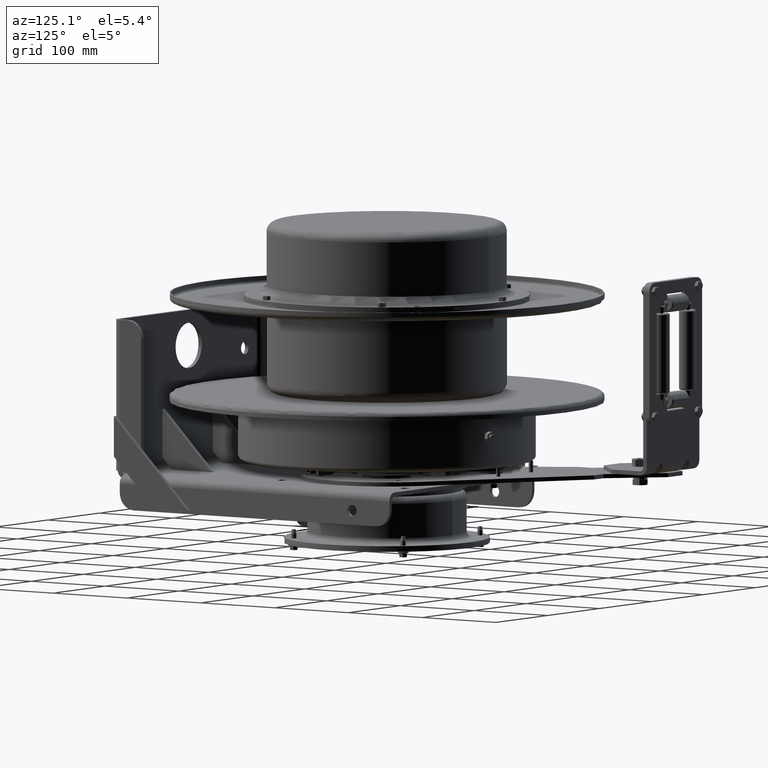
[diagram: clean part render]
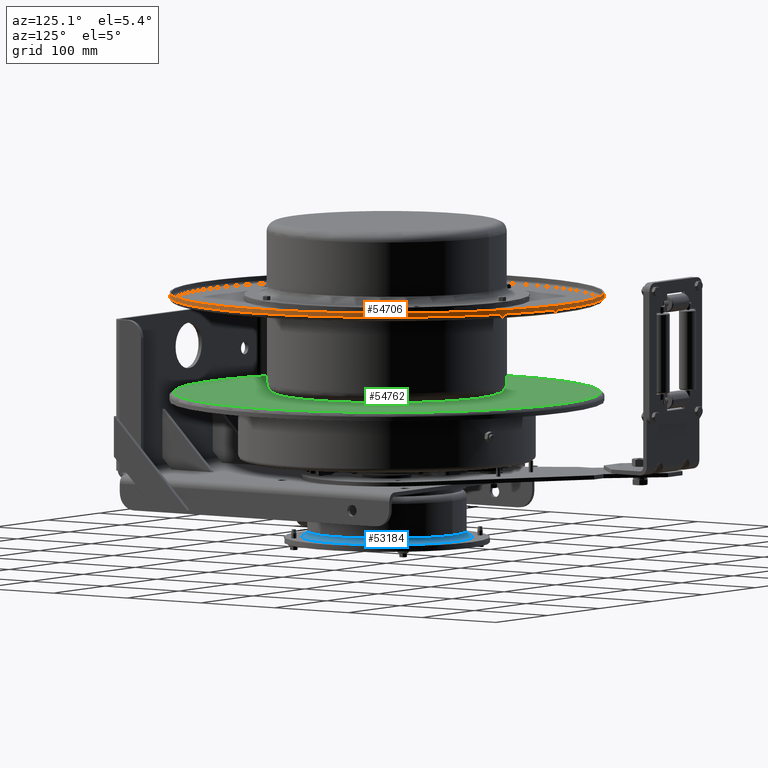
[diagram: same view with three faces highlighted in distinct colors, each labeled with its STEP entity id]
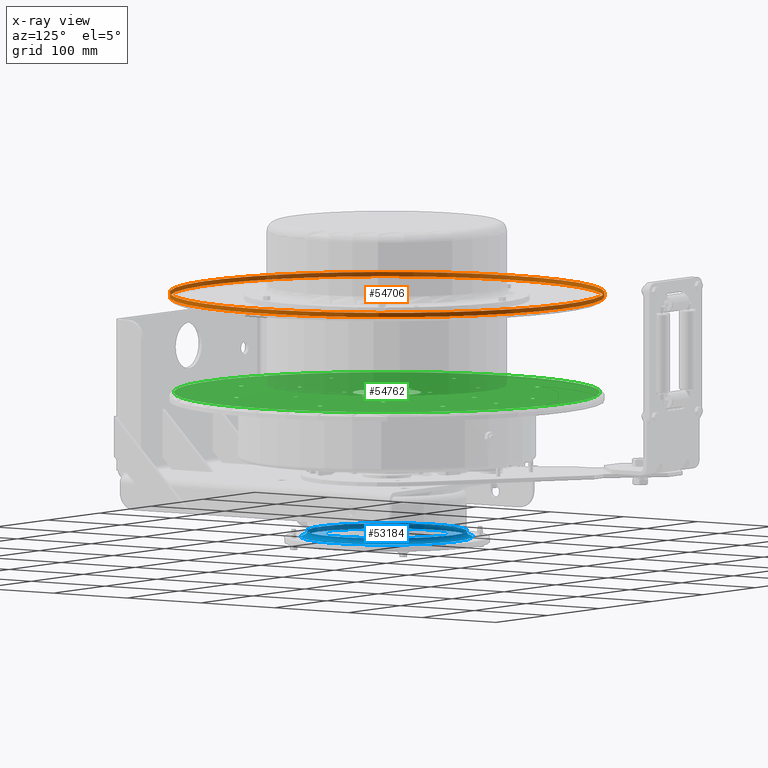
[diagram: x-ray of the same camera — body ghosted, the three highlighted faces saturated]
A machine part, auxiliary view with three faces highlighted in distinct colors.
The next image is the same camera in x-ray (body ghosted, the three faces saturated) — at least one of them is partly hidden behind the body in this view.
Their STEP definitions:

[orange] entity #54706 — the highlighted cylindrical surface (bore or boss wall) has radius 241.3 mm, axis along (-0, 0, -1).
#9720=FACE_BOUND('',#16338,.T.);
#12277=FACE_OUTER_BOUND('',#16337,.T.);
#16337=EDGE_LOOP('',(#41423));
#16338=EDGE_LOOP('',(#41424));
#20517=CIRCLE('',#59918,9.5);
#20518=CIRCLE('',#59920,9.5);
#24483=VERTEX_POINT('',#95746);
#24484=VERTEX_POINT('',#95749);
#30590=EDGE_CURVE('',#24483,#24483,#20517,.T.);
#30591=EDGE_CURVE('',#24484,#24484,#20518,.T.);
#41423=ORIENTED_EDGE('',*,*,#30591,.F.);
#41424=ORIENTED_EDGE('',*,*,#30590,.T.);
#48994=CYLINDRICAL_SURFACE('',#59919,9.5);
#54706=ADVANCED_FACE('',(#12277,#9720),#48994,.T.);
#59918=AXIS2_PLACEMENT_3D('',#95747,#71176,#71177);
#59919=AXIS2_PLACEMENT_3D('',#95748,#71178,#71179);
#59920=AXIS2_PLACEMENT_3D('',#95750,#71180,#71181);
#71176=DIRECTION('center_axis',(-2.93602999576775E-16,9.67760292955877E-17,
-1.));
#71177=DIRECTION('ref_axis',(-0.890233446241491,0.455504567697184,3.05457133527808E-16));
#71178=DIRECTION('center_axis',(-2.93602999576775E-16,9.67760292955877E-17,
-1.));
#71179=DIRECTION('ref_axis',(-0.890233446241491,0.455504567697184,3.05457133527808E-16));
#71180=DIRECTION('center_axis',(-2.93602999576775E-16,9.67760292955877E-17,
-1.));
#71181=DIRECTION('ref_axis',(-0.890233446241491,0.455504567697184,3.05457133527808E-16));
#95746=CARTESIAN_POINT('',(-13.9572177392942,15.0772933931232,8.33219999999999));
#95747=CARTESIAN_POINT('Origin',(-5.50000000000001,10.75,8.33219999999999));
#95748=CARTESIAN_POINT('Origin',(-5.50000000000001,10.75,8.23719999999999));
#95749=CARTESIAN_POINT('',(-13.9572177392942,15.0772933931232,8.14219999999999));
#95750=CARTESIAN_POINT('Origin',(-5.50000000000001,10.75,8.14219999999999));

[blue] entity #53184 — the highlighted toroidal blend (fillet) surface has major radius 95.25 mm and minor (blend) radius 6.35 mm.
#1532=TOROIDAL_SURFACE('',#57019,3.75,0.25);
#9316=FACE_BOUND('',#14412,.T.);
#10755=FACE_OUTER_BOUND('',#14411,.T.);
#14411=EDGE_LOOP('',(#34753));
#14412=EDGE_LOOP('',(#34754));
#19144=CIRCLE('',#57018,3.75);
#19145=CIRCLE('',#57020,3.5);
#22322=VERTEX_POINT('',#79711);
#22323=VERTEX_POINT('',#79714);
#27258=EDGE_CURVE('',#22322,#22322,#19144,.T.);
#27259=EDGE_CURVE('',#22323,#22323,#19145,.T.);
#34753=ORIENTED_EDGE('',*,*,#27259,.F.);
#34754=ORIENTED_EDGE('',*,*,#27258,.T.);
#53184=ADVANCED_FACE('',(#10755,#9316),#1532,.F.);
#57018=AXIS2_PLACEMENT_3D('',#79712,#64119,#64120);
#57019=AXIS2_PLACEMENT_3D('',#79713,#64121,#64122);
#57020=AXIS2_PLACEMENT_3D('',#79715,#64123,#64124);
#64119=DIRECTION('center_axis',(-1.29170650490853E-22,4.14793469481327E-17,
1.));
#64120=DIRECTION('ref_axis',(6.93889390384373E-18,1.,3.87147032753441E-16));
#64121=DIRECTION('center_axis',(-1.29170650490853E-22,4.14793469481327E-17,
1.));
#64122=DIRECTION('ref_axis',(1.,0.,0.));
#64123=DIRECTION('center_axis',(-1.29170650490853E-22,4.14793469481327E-17,
1.));
#64124=DIRECTION('ref_axis',(6.93889390384373E-18,1.,3.87147032753441E-16));
#79711=CARTESIAN_POINT('',(-5.5,14.5,-2.3695));
#79712=CARTESIAN_POINT('Origin',(-5.5,10.75,-2.3695));
#79713=CARTESIAN_POINT('Origin',(-5.5,10.75,-2.1195));
#79714=CARTESIAN_POINT('',(-5.5,14.25,-2.1195));
#79715=CARTESIAN_POINT('Origin',(-5.5,10.75,-2.1195));

[green] entity #54762 — the highlighted planar face has unit normal (0, 0, 1).
#3566=PLANE('',#60047);
#9776=FACE_BOUND('',#16450,.T.);
#9777=FACE_BOUND('',#16451,.T.);
#9778=FACE_BOUND('',#16452,.T.);
#9779=FACE_BOUND('',#16453,.T.);
#9780=FACE_BOUND('',#16454,.T.);
#9781=FACE_BOUND('',#16455,.T.);
#9782=FACE_BOUND('',#16456,.T.);
#9783=FACE_BOUND('',#16457,.T.);
#9784=FACE_BOUND('',#16458,.T.);
#9785=FACE_BOUND('',#16459,.T.);
#9786=FACE_BOUND('',#16460,.T.);
#9787=FACE_BOUND('',#16461,.T.);
#9788=FACE_BOUND('',#16462,.T.);
#9789=FACE_BOUND('',#16463,.T.);
#9790=FACE_BOUND('',#16464,.T.);
#9791=FACE_BOUND('',#16465,.T.);
#9792=FACE_BOUND('',#16466,.T.);
#9793=FACE_BOUND('',#16467,.T.);
#9794=FACE_BOUND('',#16468,.T.);
#9795=FACE_BOUND('',#16469,.T.);
#9796=FACE_BOUND('',#16470,.T.);
#9797=FACE_BOUND('',#16471,.T.);
#9798=FACE_BOUND('',#16472,.T.);
#12333=FACE_OUTER_BOUND('',#16449,.T.);
#16449=EDGE_LOOP('',(#41535));
#16450=EDGE_LOOP('',(#41536));
#16451=EDGE_LOOP('',(#41537));
#16452=EDGE_LOOP('',(#41538));
#16453=EDGE_LOOP('',(#41539));
#16454=EDGE_LOOP('',(#41540));
#16455=EDGE_LOOP('',(#41541));
#16456=EDGE_LOOP('',(#41542));
#16457=EDGE_LOOP('',(#41543));
#16458=EDGE_LOOP('',(#41544));
#16459=EDGE_LOOP('',(#41545));
#16460=EDGE_LOOP('',(#41546));
#16461=EDGE_LOOP('',(#41547));
#16462=EDGE_LOOP('',(#41548));
#16463=EDGE_LOOP('',(#41549));
#16464=EDGE_LOOP('',(#41550));
#16465=EDGE_LOOP('',(#41551));
#16466=EDGE_LOOP('',(#41552));
#16467=EDGE_LOOP('',(#41553));
#16468=EDGE_LOOP('',(#41554));
#16469=EDGE_LOOP('',(#41555));
#16470=EDGE_LOOP('',(#41556));
#16471=EDGE_LOOP('',(#41557));
#16472=EDGE_LOOP('',(#41558));
#20538=CIRCLE('',#59968,0.0985);
#20540=CIRCLE('',#59971,0.0985);
#20542=CIRCLE('',#59974,0.0985);
#20544=CIRCLE('',#59977,0.0985);
#20546=CIRCLE('',#59980,0.0985);
#20548=CIRCLE('',#59983,0.0985);
#20550=CIRCLE('',#59986,0.0985);
#20552=CIRCLE('',#59989,0.0985);
#20554=CIRCLE('',#59992,0.0985);
#20556=CIRCLE('',#59995,0.0985);
#20558=CIRCLE('',#59998,0.0995);
#20560=CIRCLE('',#60001,0.0995);
#20562=CIRCLE('',#60004,0.0995);
#20564=CIRCLE('',#60007,0.0995);
#20566=CIRCLE('',#60010,0.0995);
#20568=CIRCLE('',#60013,0.0995);
#20570=CIRCLE('',#60016,0.0985);
#20572=CIRCLE('',#60019,0.0985);
#20574=CIRCLE('',#60022,0.0985);
#20576=CIRCLE('',#60025,0.0985);
#20578=CIRCLE('',#60028,0.0985);
#20580=CIRCLE('',#60031,0.0985);
#20583=CIRCLE('',#60035,1.5);
#20589=CIRCLE('',#60046,9.315);
#24504=VERTEX_POINT('',#95817);
#24506=VERTEX_POINT('',#95822);
#24508=VERTEX_POINT('',#95827);
#24510=VERTEX_POINT('',#95832);
#24512=VERTEX_POINT('',#95837);
#24514=VERTEX_POINT('',#95842);
#24516=VERTEX_POINT('',#95847);
#24518=VERTEX_POINT('',#95852);
#24520=VERTEX_POINT('',#95857);
#24522=VERTEX_POINT('',#95862);
#24524=VERTEX_POINT('',#95867);
#24526=VERTEX_POINT('',#95872);
#24528=VERTEX_POINT('',#95877);
#24530=VERTEX_POINT('',#95882);
#24532=VERTEX_POINT('',#95887);
#24534=VERTEX_POINT('',#95892);
#24536=VERTEX_POINT('',#95897);
#24538=VERTEX_POINT('',#95902);
#24540=VERTEX_POINT('',#95907);
#24542=VERTEX_POINT('',#95912);
#24544=VERTEX_POINT('',#95917);
#24546=VERTEX_POINT('',#95922);
#24549=VERTEX_POINT('',#95929);
#24555=VERTEX_POINT('',#95946);
#30611=EDGE_CURVE('',#24504,#24504,#20538,.T.);
#30613=EDGE_CURVE('',#24506,#24506,#20540,.T.);
#30615=EDGE_CURVE('',#24508,#24508,#20542,.T.);
#30617=EDGE_CURVE('',#24510,#24510,#20544,.T.);
#30619=EDGE_CURVE('',#24512,#24512,#20546,.T.);
#30621=EDGE_CURVE('',#24514,#24514,#20548,.T.);
#30623=EDGE_CURVE('',#24516,#24516,#20550,.T.);
#30625=EDGE_CURVE('',#24518,#24518,#20552,.T.);
#30627=EDGE_CURVE('',#24520,#24520,#20554,.T.);
#30629=EDGE_CURVE('',#24522,#24522,#20556,.T.);
#30631=EDGE_CURVE('',#24524,#24524,#20558,.T.);
#30633=EDGE_CURVE('',#24526,#24526,#20560,.T.);
#30635=EDGE_CURVE('',#24528,#24528,#20562,.T.);
#30637=EDGE_CURVE('',#24530,#24530,#20564,.T.);
#30639=EDGE_CURVE('',#24532,#24532,#20566,.T.);
#30641=EDGE_CURVE('',#24534,#24534,#20568,.T.);
#30643=EDGE_CURVE('',#24536,#24536,#20570,.T.);
#30645=EDGE_CURVE('',#24538,#24538,#20572,.T.);
#30647=EDGE_CURVE('',#24540,#24540,#20574,.T.);
#30649=EDGE_CURVE('',#24542,#24542,#20576,.T.);
#30651=EDGE_CURVE('',#24544,#24544,#20578,.T.);
#30653=EDGE_CURVE('',#24546,#24546,#20580,.T.);
#30656=EDGE_CURVE('',#24549,#24549,#20583,.T.);
#30662=EDGE_CURVE('',#24555,#24555,#20589,.T.);
#41535=ORIENTED_EDGE('',*,*,#30662,.T.);
#41536=ORIENTED_EDGE('',*,*,#30611,.T.);
#41537=ORIENTED_EDGE('',*,*,#30613,.T.);
#41538=ORIENTED_EDGE('',*,*,#30615,.T.);
#41539=ORIENTED_EDGE('',*,*,#30617,.T.);
#41540=ORIENTED_EDGE('',*,*,#30619,.T.);
#41541=ORIENTED_EDGE('',*,*,#30621,.T.);
#41542=ORIENTED_EDGE('',*,*,#30623,.T.);
#41543=ORIENTED_EDGE('',*,*,#30625,.T.);
#41544=ORIENTED_EDGE('',*,*,#30627,.T.);
#41545=ORIENTED_EDGE('',*,*,#30629,.T.);
#41546=ORIENTED_EDGE('',*,*,#30631,.T.);
#41547=ORIENTED_EDGE('',*,*,#30633,.T.);
#41548=ORIENTED_EDGE('',*,*,#30635,.T.);
#41549=ORIENTED_EDGE('',*,*,#30637,.T.);
#41550=ORIENTED_EDGE('',*,*,#30639,.T.);
#41551=ORIENTED_EDGE('',*,*,#30641,.T.);
#41552=ORIENTED_EDGE('',*,*,#30643,.T.);
#41553=ORIENTED_EDGE('',*,*,#30645,.T.);
#41554=ORIENTED_EDGE('',*,*,#30647,.T.);
#41555=ORIENTED_EDGE('',*,*,#30649,.T.);
#41556=ORIENTED_EDGE('',*,*,#30651,.T.);
#41557=ORIENTED_EDGE('',*,*,#30653,.T.);
#41558=ORIENTED_EDGE('',*,*,#30656,.T.);
#54762=ADVANCED_FACE('',(#12333,#9776,#9777,#9778,#9779,#9780,#9781,#9782,
#9783,#9784,#9785,#9786,#9787,#9788,#9789,#9790,#9791,#9792,#9793,#9794,
#9795,#9796,#9797,#9798),#3566,.T.);
#59968=AXIS2_PLACEMENT_3D('',#95818,#71276,#71277);
#59971=AXIS2_PLACEMENT_3D('',#95823,#71282,#71283);
#59974=AXIS2_PLACEMENT_3D('',#95828,#71288,#71289);
#59977=AXIS2_PLACEMENT_3D('',#95833,#71294,#71295);
#59980=AXIS2_PLACEMENT_3D('',#95838,#71300,#71301);
#59983=AXIS2_PLACEMENT_3D('',#95843,#71306,#71307);
#59986=AXIS2_PLACEMENT_3D('',#95848,#71312,#71313);
#59989=AXIS2_PLACEMENT_3D('',#95853,#71318,#71319);
#59992=AXIS2_PLACEMENT_3D('',#95858,#71324,#71325);
#59995=AXIS2_PLACEMENT_3D('',#95863,#71330,#71331);
#59998=AXIS2_PLACEMENT_3D('',#95868,#71336,#71337);
#60001=AXIS2_PLACEMENT_3D('',#95873,#71342,#71343);
#60004=AXIS2_PLACEMENT_3D('',#95878,#71348,#71349);
#60007=AXIS2_PLACEMENT_3D('',#95883,#71354,#71355);
#60010=AXIS2_PLACEMENT_3D('',#95888,#71360,#71361);
#60013=AXIS2_PLACEMENT_3D('',#95893,#71366,#71367);
#60016=AXIS2_PLACEMENT_3D('',#95898,#71372,#71373);
#60019=AXIS2_PLACEMENT_3D('',#95903,#71378,#71379);
#60022=AXIS2_PLACEMENT_3D('',#95908,#71384,#71385);
#60025=AXIS2_PLACEMENT_3D('',#95913,#71390,#71391);
#60028=AXIS2_PLACEMENT_3D('',#95918,#71396,#71397);
#60031=AXIS2_PLACEMENT_3D('',#95923,#71402,#71403);
#60035=AXIS2_PLACEMENT_3D('',#95930,#71410,#71411);
#60046=AXIS2_PLACEMENT_3D('',#95947,#71432,#71433);
#60047=AXIS2_PLACEMENT_3D('',#95948,#71434,#71435);
#71276=DIRECTION('center_axis',(-2.92784930257539E-17,-4.53831339461236E-17,
-1.));
#71277=DIRECTION('ref_axis',(0.839595250286353,0.543212495895112,-4.92347691423811E-17));
#71282=DIRECTION('center_axis',(-2.92784930257539E-17,-4.53831339461236E-17,
-1.));
#71283=DIRECTION('ref_axis',(0.839595250286353,0.543212495895112,-4.92347691423811E-17));
#71288=DIRECTION('center_axis',(-2.92784930257539E-17,-4.53831339461236E-17,
-1.));
#71289=DIRECTION('ref_axis',(0.9777927344022,-0.209574255456794,-1.91171612477729E-17));
#71294=DIRECTION('center_axis',(-2.92784930257539E-17,-4.53831339461236E-17,
-1.));
#71295=DIRECTION('ref_axis',(0.543212495895112,-0.839595250286353,2.21990204317073E-17));
#71300=DIRECTION('center_axis',(-2.92784930257539E-17,-4.53831339461236E-17,
-1.));
#71301=DIRECTION('ref_axis',(-0.209574255456794,-0.9777927344022,5.05113170136908E-17));
#71306=DIRECTION('center_axis',(-2.92784930257539E-17,-4.53831339461236E-17,
-1.));
#71307=DIRECTION('ref_axis',(-0.839595250286353,-0.543212495895112,4.92347691423811E-17));
#71312=DIRECTION('center_axis',(-2.92784930257539E-17,-4.53831339461236E-17,
-1.));
#71313=DIRECTION('ref_axis',(-0.9777927344022,0.209574255456793,1.91171612477729E-17));
#71318=DIRECTION('center_axis',(-2.92784930257539E-17,-4.53831339461236E-17,
-1.));
#71319=DIRECTION('ref_axis',(-0.543212495895112,0.839595250286353,-2.21990204317073E-17));
#71324=DIRECTION('center_axis',(-2.92784930257539E-17,-4.53831339461236E-17,
-1.));
#71325=DIRECTION('ref_axis',(0.209574255456793,0.9777927344022,-5.05113170136908E-17));
#71330=DIRECTION('center_axis',(-2.92784930257539E-17,-4.53831339461236E-17,
-1.));
#71331=DIRECTION('ref_axis',(0.839595250286353,0.543212495895112,-4.92347691423811E-17));
#71336=DIRECTION('center_axis',(-2.92784930257539E-17,-4.53831339461236E-17,
-1.));
#71337=DIRECTION('ref_axis',(0.890233446241493,-0.45550456769718,-5.39246893820217E-18));
#71342=DIRECTION('center_axis',(-2.92784930257539E-17,-4.53831339461236E-17,
-1.));
#71343=DIRECTION('ref_axis',(0.0506381959551402,-0.998717063592291,4.38423002041789E-17));
#71348=DIRECTION('center_axis',(-2.92784930257539E-17,-4.53831339461236E-17,
-1.));
#71349=DIRECTION('ref_axis',(-0.839595250286353,-0.543212495895112,4.92347691423811E-17));
#71354=DIRECTION('center_axis',(-2.92784930257539E-17,-4.53831339461236E-17,
-1.));
#71355=DIRECTION('ref_axis',(-0.890233446241493,0.45550456769718,5.3924689382022E-18));
#71360=DIRECTION('center_axis',(-2.92784930257539E-17,-4.53831339461236E-17,
-1.));
#71361=DIRECTION('ref_axis',(-0.0506381959551406,0.998717063592291,-4.38423002041789E-17));
#71366=DIRECTION('center_axis',(-2.92784930257539E-17,-4.53831339461236E-17,
-1.));
#71367=DIRECTION('ref_axis',(0.839595250286353,0.543212495895112,-4.92347691423811E-17));
#71372=DIRECTION('center_axis',(-2.92784930257539E-17,-4.53831339461236E-17,
-1.));
#71373=DIRECTION('ref_axis',(0.890233446241493,-0.45550456769718,-5.39246893820217E-18));
#71378=DIRECTION('center_axis',(-2.92784930257539E-17,-4.53831339461236E-17,
-1.));
#71379=DIRECTION('ref_axis',(0.0506381959551402,-0.998717063592291,4.38423002041789E-17));
#71384=DIRECTION('center_axis',(-2.92784930257539E-17,-4.53831339461236E-17,
-1.));
#71385=DIRECTION('ref_axis',(-0.839595250286353,-0.543212495895112,4.92347691423811E-17));
#71390=DIRECTION('center_axis',(-2.92784930257539E-17,-4.53831339461236E-17,
-1.));
#71391=DIRECTION('ref_axis',(-0.890233446241493,0.45550456769718,5.3924689382022E-18));
#71396=DIRECTION('center_axis',(-2.92784930257539E-17,-4.53831339461236E-17,
-1.));
#71397=DIRECTION('ref_axis',(-0.0506381959551405,0.998717063592291,-4.38423002041789E-17));
#71402=DIRECTION('center_axis',(-2.92784930257539E-17,-4.53831339461236E-17,
-1.));
#71403=DIRECTION('ref_axis',(0.839595250286353,0.543212495895112,-4.92347691423811E-17));
#71410=DIRECTION('center_axis',(-2.92784930257539E-17,-4.53831339461236E-17,
-1.));
#71411=DIRECTION('ref_axis',(0.839595250286353,0.543212495895112,-4.92347691423811E-17));
#71432=DIRECTION('center_axis',(2.92784930257539E-17,4.53831339461236E-17,
1.));
#71433=DIRECTION('ref_axis',(0.543212495895112,-0.839595250286353,2.21990204317073E-17));
#71434=DIRECTION('center_axis',(2.92784930257539E-17,4.53831339461236E-17,
1.));
#71435=DIRECTION('ref_axis',(-0.839595250286353,-0.543212495895112,0.));
#95817=CARTESIAN_POINT('',(-2.5495373669542,11.6763302340176,3.95719999999994));
#95818=CARTESIAN_POINT('Origin',(-2.466837234801,11.7298366648632,3.95719999999994));
#95822=CARTESIAN_POINT('',(-4.11568034395566,17.5410427099697,3.95719999999994));
#95823=CARTESIAN_POINT('Origin',(-4.03298021180245,17.5945491408154,3.95719999999994));
#95827=CARTESIAN_POINT('',(-9.57095769864215,5.00850837159038,3.95719999999994));
#95828=CARTESIAN_POINT('Origin',(-9.47464511430354,4.98786530742789,3.95719999999994));
#95832=CARTESIAN_POINT('',(-12.4384494592077,9.56875413005921,3.95719999999994));
#95833=CARTESIAN_POINT('Origin',(-12.384943028362,9.48605399790601,3.95719999999994));
#95837=CARTESIAN_POINT('',(-11.2414916284096,14.8209576986421,3.95719999999994));
#95838=CARTESIAN_POINT('Origin',(-11.2621346925721,14.7246451143035,3.95719999999994));
#95842=CARTESIAN_POINT('',(-6.68124586994079,17.6884494592077,3.95719999999994));
#95843=CARTESIAN_POINT('Origin',(-6.763946002094,17.634943028362,3.95719999999994));
#95847=CARTESIAN_POINT('',(-1.42904230135786,16.4914916284096,3.95719999999994));
#95848=CARTESIAN_POINT('Origin',(-1.52535488569647,16.5121346925721,3.95719999999994));
#95852=CARTESIAN_POINT('',(1.43844945920767,11.9312458699408,3.95719999999994));
#95853=CARTESIAN_POINT('Origin',(1.384943028362,12.013946002094,3.95719999999994));
#95857=CARTESIAN_POINT('',(0.241491628409611,6.67904230135785,3.95719999999994));
#95858=CARTESIAN_POINT('Origin',(0.262134692572106,6.77535488569647,3.95719999999994));
#95862=CARTESIAN_POINT('',(-4.31875413005921,3.81155054079232,3.95719999999994));
#95863=CARTESIAN_POINT('Origin',(-4.23605399790601,3.86505697163799,3.95719999999994));
#95867=CARTESIAN_POINT('',(-1.58252771981432,8.74555214984856,3.95719999999994));
#95868=CARTESIAN_POINT('Origin',(-1.49394949191329,8.70022944536269,3.95719999999994));
#95872=CARTESIAN_POINT('',(-5.27716661869941,6.35514556166212,3.95719999999994));
#95873=CARTESIAN_POINT('Origin',(-5.27212811820187,6.25577321383469,3.95719999999994));
#95877=CARTESIAN_POINT('',(-9.1946388988851,8.35959341181356,3.95719999999994));
#95878=CARTESIAN_POINT('Origin',(-9.27817862628859,8.305543768472,3.95719999999994));
#95882=CARTESIAN_POINT('',(-9.4174722801857,12.7544478501514,3.95719999999994));
#95883=CARTESIAN_POINT('Origin',(-9.50605050808672,12.7997705546373,3.95719999999994));
#95887=CARTESIAN_POINT('',(-5.7228333813006,15.1448544383379,3.95719999999994));
#95888=CARTESIAN_POINT('Origin',(-5.72787188179814,15.2442267861653,3.95719999999994));
#95892=CARTESIAN_POINT('',(-1.80536110111491,13.1404065881864,3.95719999999994));
#95893=CARTESIAN_POINT('Origin',(-1.72182137371142,13.194456231528,3.95719999999994));
#95897=CARTESIAN_POINT('',(-6.441759058887,9.12567948821537,3.95719999999994));
#95898=CARTESIAN_POINT('Origin',(-6.35407106443222,9.0808122882972,3.95719999999994));
#95902=CARTESIAN_POINT('',(-7.37758235653713,10.753427013348,3.95719999999994));
#95903=CARTESIAN_POINT('Origin',(-7.37259449423555,10.6550533825841,3.95719999999994));
#95907=CARTESIAN_POINT('',(-6.43582329765013,12.3777475251326,3.95719999999994));
#95908=CARTESIAN_POINT('Origin',(-6.51852342980334,12.3242410942869,3.95719999999994));
#95912=CARTESIAN_POINT('',(-4.55824094111301,12.3743205117846,3.95719999999994));
#95913=CARTESIAN_POINT('Origin',(-4.64592893556779,12.4191877117028,3.95719999999994));
#95917=CARTESIAN_POINT('',(-3.62241764346288,10.746572986652,3.95719999999994));
#95918=CARTESIAN_POINT('Origin',(-3.62740550576446,10.8449466174159,3.95719999999994));
#95922=CARTESIAN_POINT('',(-4.56417670234988,9.12225247486742,3.95719999999994));
#95923=CARTESIAN_POINT('Origin',(-4.48147657019667,9.17575890571309,3.95719999999994));
#95929=CARTESIAN_POINT('',(-6.75939287542953,9.93518125615733,3.95719999999994));
#95930=CARTESIAN_POINT('Origin',(-5.5,10.75,3.95719999999994));
#95946=CARTESIAN_POINT('',(-0.439975600737038,2.92917024358263,3.95719999999994));
#95947=CARTESIAN_POINT('Origin',(-5.5,10.75,3.95719999999994));
#95948=CARTESIAN_POINT('Origin',(-2.96998780036852,6.83958512179131,3.95719999999994));